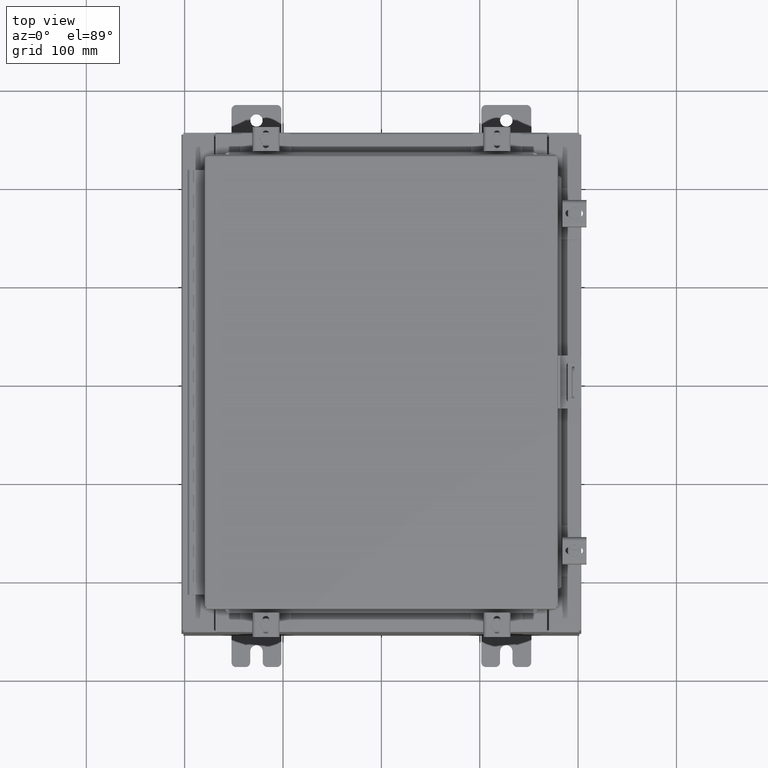
[diagram: clean part render]
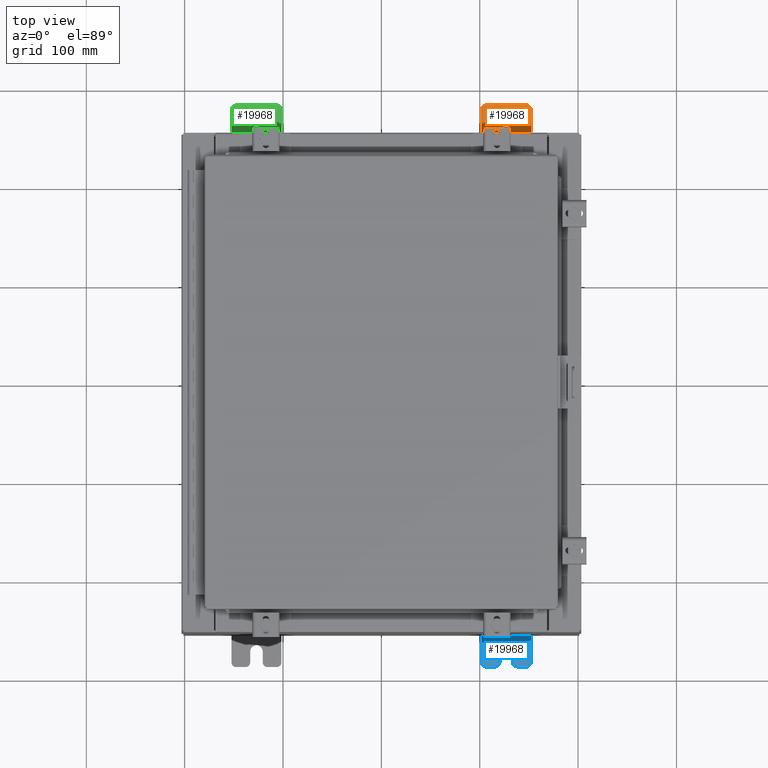
[diagram: same view with three faces highlighted in distinct colors, each labeled with its STEP entity id]
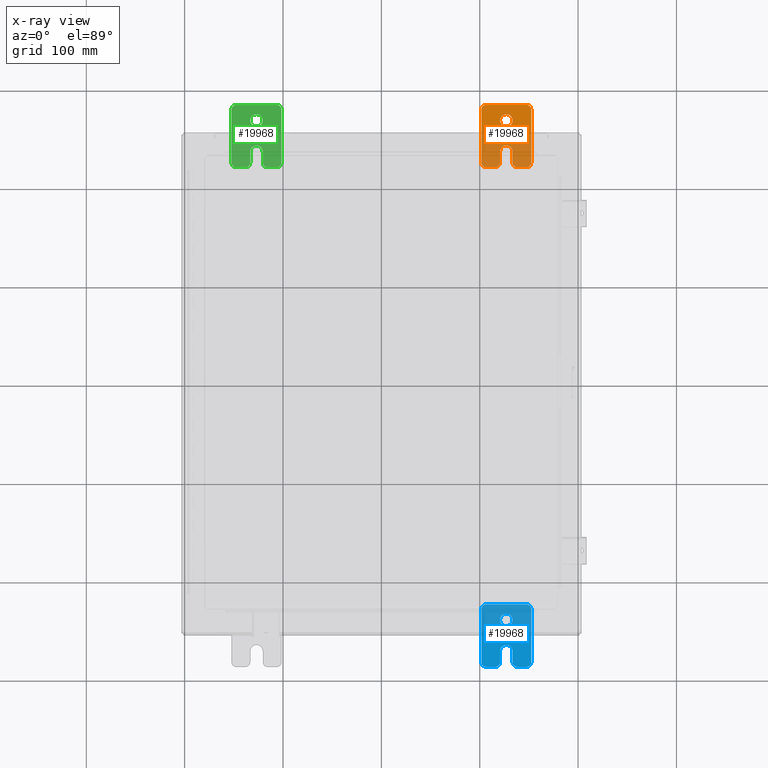
[diagram: x-ray of the same camera — body ghosted, the three highlighted faces saturated]
A machine part, top view with three faces highlighted in distinct colors.
The next image is the same camera in x-ray (body ghosted, the three faces saturated) — at least one of them is partly hidden behind the body in this view.
Their STEP definitions:

[orange] entity #19968 — the highlighted planar face has unit normal (0, 0, 1).
#142 = EDGE_CURVE ( 'NONE', #1537, #10038, #14844, .T. ) ;
#655 = EDGE_CURVE ( 'NONE', #10101, #25699, #19424, .T. ) ;
#717 = CARTESIAN_POINT ( 'NONE',  ( 0.0000000000000000000, -1.250000000000005600, -1.000000000000006200 ) ) ;
#722 = CIRCLE ( 'NONE', #10263, 0.1900000000000011100 ) ;
#729 = ORIENTED_EDGE ( 'NONE', *, *, #904, .T. ) ;
#883 = CARTESIAN_POINT ( 'NONE',  ( 0.0000000000000000000, 1.059999999999993600, -0.8100000000000089400 ) ) ;
#904 = EDGE_CURVE ( 'NONE', #9407, #25755, #18354, .T. ) ;
#967 = CIRCLE ( 'NONE', #15060, 0.2499999999999999200 ) ;
#1161 = EDGE_CURVE ( 'NONE', #29018, #1537, #11910, .T. ) ;
#1355 = FACE_OUTER_BOUND ( 'NONE', #20609, .T. ) ;
#1449 = DIRECTION ( 'NONE',  ( 1.000000000000000000, 0.0000000000000000000, -0.0000000000000000000 ) ) ;
#1537 = VERTEX_POINT ( 'NONE', #23176 ) ;
#2424 = DIRECTION ( 'NONE',  ( 0.0000000000000000000, 0.0000000000000000000, -1.000000000000000000 ) ) ;
#2435 = CARTESIAN_POINT ( 'NONE',  ( 0.0000000000000000000, -0.6249999999999992200, 0.2500000000000005000 ) ) ;
#3077 = DIRECTION ( 'NONE',  ( 6.556435184794182400E-016, 1.000000000000000000, 0.0000000000000000000 ) ) ;
#3163 = DIRECTION ( 'NONE',  ( 0.0000000000000000000, 0.0000000000000000000, -1.000000000000000000 ) ) ;
#3229 = EDGE_CURVE ( 'NONE', #12703, #14231, #27163, .T. ) ;
#3608 = VECTOR ( 'NONE', #3944, 39.37007874015748100 ) ;
#3788 = CARTESIAN_POINT ( 'NONE',  ( 0.0000000000000000000, -1.060000000000003400, -0.4400000000000005000 ) ) ;
#3944 = DIRECTION ( 'NONE',  ( 0.0000000000000000000, -1.639108796198553600E-015, -1.000000000000000000 ) ) ;
#4014 = CARTESIAN_POINT ( 'NONE',  ( 0.0000000000000000000, 1.249999999999994200, -1.000000000000010400 ) ) ;
#4406 = CIRCLE ( 'NONE', #20731, 0.1900000000000011100 ) ;
#4657 = EDGE_CURVE ( 'NONE', #10038, #12703, #4951, .T. ) ;
#4951 = CIRCLE ( 'NONE', #19714, 0.1900000000000011100 ) ;
#5007 = VECTOR ( 'NONE', #6291, 39.37007874015748100 ) ;
#5450 = ORIENTED_EDGE ( 'NONE', *, *, #29311, .T. ) ;
#5769 = CARTESIAN_POINT ( 'NONE',  ( 0.0000000000000000000, -1.250000000000005300, -0.8100000000000047200 ) ) ;
#6017 = EDGE_CURVE ( 'NONE', #14231, #23090, #10894, .T. ) ;
#6081 = DIRECTION ( 'NONE',  ( 0.0000000000000000000, 0.0000000000000000000, -1.000000000000000000 ) ) ;
#6291 = DIRECTION ( 'NONE',  ( 0.0000000000000000000, 1.639108796198553600E-015, 1.000000000000000000 ) ) ;
#6402 = ORIENTED_EDGE ( 'NONE', *, *, #7234, .T. ) ;
#6435 = LINE ( 'NONE', #4014, #5007 ) ;
#6568 = DIRECTION ( 'NONE',  ( 1.000000000000000000, 0.0000000000000000000, -0.0000000000000000000 ) ) ;
#6571 = CARTESIAN_POINT ( 'NONE',  ( 1.928684683526964400E-016, -1.060000000000003400, -0.2499999999999994400 ) ) ;
#6841 = EDGE_CURVE ( 'NONE', #27717, #18850, #19051, .T. ) ;
#6917 = CARTESIAN_POINT ( 'NONE',  ( 0.0000000000000000000, -1.250000000000002200, 0.9999999999999992200 ) ) ;
#7234 = EDGE_CURVE ( 'NONE', #18850, #9407, #4406, .T. ) ;
#7286 = VERTEX_POINT ( 'NONE', #15782 ) ;
#7316 = VECTOR ( 'NONE', #8815, 39.37007874015748100 ) ;
#7453 = CARTESIAN_POINT ( 'NONE',  ( 0.0000000000000000000, 1.059999999999996300, 0.8099999999999938400 ) ) ;
#7580 = VERTEX_POINT ( 'NONE', #9593 ) ;
#7649 = VECTOR ( 'NONE', #11405, 39.37007874015748100 ) ;
#7650 = DIRECTION ( 'NONE',  ( 1.000000000000000000, 0.0000000000000000000, -0.0000000000000000000 ) ) ;
#8132 = DIRECTION ( 'NONE',  ( 0.0000000000000000000, -1.000000000000000000, 1.639108796198558100E-015 ) ) ;
#8217 = CARTESIAN_POINT ( 'NONE',  ( 0.0000000000000000000, 0.0000000000000000000, 0.0000000000000000000 ) ) ;
#8318 = DIRECTION ( 'NONE',  ( 1.000000000000000000, 0.0000000000000000000, -0.0000000000000000000 ) ) ;
#8368 = ORIENTED_EDGE ( 'NONE', *, *, #25156, .T. ) ;
#8460 = ORIENTED_EDGE ( 'NONE', *, *, #15496, .T. ) ;
#8544 = VECTOR ( 'NONE', #3077, 39.37007874015748100 ) ;
#8557 = AXIS2_PLACEMENT_3D ( 'NONE', #8217, #8318, #24264 ) ;
#8580 = CIRCLE ( 'NONE', #21309, 0.2499999999999999200 ) ;
#8603 = DIRECTION ( 'NONE',  ( -1.000000000000000000, 6.523827964459549700E-016, 5.163192708025532000E-017 ) ) ;
#8815 = DIRECTION ( 'NONE',  ( -6.556435184794182400E-016, -1.000000000000000000, -1.639108796198545600E-016 ) ) ;
#8844 = CARTESIAN_POINT ( 'NONE',  ( 4.039428427013647300E-016, 0.6249999999999992200, -9.783840404509077400E-018 ) ) ;
#8938 = CARTESIAN_POINT ( 'NONE',  ( 0.0000000000000000000, -1.060000000000001200, 0.9999999999999988900 ) ) ;
#8977 = CARTESIAN_POINT ( 'NONE',  ( 0.0000000000000000000, 1.249999999999994700, -0.8100000000000092700 ) ) ;
#9100 = ORIENTED_EDGE ( 'NONE', *, *, #3229, .T. ) ;
#9407 = VERTEX_POINT ( 'NONE', #13438 ) ;
#9593 = CARTESIAN_POINT ( 'NONE',  ( 3.910348609313009100E-016, 0.6249999999999992200, -0.2499999999999999200 ) ) ;
#9720 = CARTESIAN_POINT ( 'NONE',  ( 0.0000000000000000000, -1.250000000000002400, 0.8099999999999980500 ) ) ;
#10038 = VERTEX_POINT ( 'NONE', #8938 ) ;
#10101 = VERTEX_POINT ( 'NONE', #25096 ) ;
#10263 = AXIS2_PLACEMENT_3D ( 'NONE', #883, #16799, #3163 ) ;
#10309 = EDGE_CURVE ( 'NONE', #25755, #25728, #722, .T. ) ;
#10541 = DIRECTION ( 'NONE',  ( 0.0000000000000000000, 1.000000000000000000, -1.639108796198558100E-015 ) ) ;
#10894 = CIRCLE ( 'NONE', #21462, 0.1900000000000011400 ) ;
#11128 = DIRECTION ( 'NONE',  ( -5.163192708025533800E-017, 0.0000000000000000000, -1.000000000000000000 ) ) ;
#11267 = CIRCLE ( 'NONE', #28270, 0.2499999999999999200 ) ;
#11405 = DIRECTION ( 'NONE',  ( 0.0000000000000000000, -1.639108796198553600E-015, -1.000000000000000000 ) ) ;
#11899 = EDGE_CURVE ( 'NONE', #7580, #7286, #11267, .T. ) ;
#11910 = CIRCLE ( 'NONE', #16425, 0.1900000000000011100 ) ;
#12081 = CARTESIAN_POINT ( 'NONE',  ( 0.0000000000000000000, -1.060000000000001600, 0.8099999999999978300 ) ) ;
#12213 = CARTESIAN_POINT ( 'NONE',  ( 4.039428427013647300E-016, 0.6249999999999992200, -9.783840404509077400E-018 ) ) ;
#12703 = VERTEX_POINT ( 'NONE', #9720 ) ;
#12723 = ORIENTED_EDGE ( 'NONE', *, *, #6841, .T. ) ;
#13227 = VERTEX_POINT ( 'NONE', #2435 ) ;
#13438 = CARTESIAN_POINT ( 'NONE',  ( 0.0000000000000000000, -1.060000000000004500, -1.000000000000006400 ) ) ;
#14231 = VERTEX_POINT ( 'NONE', #26882 ) ;
#14311 = CARTESIAN_POINT ( 'NONE',  ( 0.0000000000000000000, 1.249999999999997300, 0.8099999999999935000 ) ) ;
#14406 = DIRECTION ( 'NONE',  ( 0.0000000000000000000, 0.0000000000000000000, -1.000000000000000000 ) ) ;
#14526 = DIRECTION ( 'NONE',  ( -5.163192708025533800E-017, 0.0000000000000000000, -1.000000000000000000 ) ) ;
#14844 = LINE ( 'NONE', #23008, #26268 ) ;
#15060 = AXIS2_PLACEMENT_3D ( 'NONE', #12213, #28191, #14526 ) ;
#15088 = CARTESIAN_POINT ( 'NONE',  ( 0.0000000000000000000, -1.060000000000004100, -0.8100000000000050500 ) ) ;
#15496 = EDGE_CURVE ( 'NONE', #23090, #13227, #20651, .T. ) ;
#15692 = EDGE_LOOP ( 'NONE', ( #28831, #15819 ) ) ;
#15782 = CARTESIAN_POINT ( 'NONE',  ( 4.168508244714285900E-016, 0.6249999999999992200, 0.2499999999999999200 ) ) ;
#15819 = ORIENTED_EDGE ( 'NONE', *, *, #20726, .F. ) ;
#16425 = AXIS2_PLACEMENT_3D ( 'NONE', #7453, #7650, #2424 ) ;
#16799 = DIRECTION ( 'NONE',  ( 1.000000000000000000, 0.0000000000000000000, -0.0000000000000000000 ) ) ;
#17373 = DIRECTION ( 'NONE',  ( 0.0000000000000000000, 0.0000000000000000000, -1.000000000000000000 ) ) ;
#18229 = CARTESIAN_POINT ( 'NONE',  ( 0.0000000000000000000, 1.059999999999993400, -1.000000000000010000 ) ) ;
#18354 = LINE ( 'NONE', #717, #19065 ) ;
#18850 = VERTEX_POINT ( 'NONE', #5769 ) ;
#18870 = CIRCLE ( 'NONE', #24615, 0.1900000000000011100 ) ;
#19051 = LINE ( 'NONE', #6917, #7649 ) ;
#19065 = VECTOR ( 'NONE', #10541, 39.37007874015748100 ) ;
#19175 = ORIENTED_EDGE ( 'NONE', *, *, #10309, .T. ) ;
#19424 = LINE ( 'NONE', #22456, #7316 ) ;
#19714 = AXIS2_PLACEMENT_3D ( 'NONE', #12081, #28071, #14406 ) ;
#19725 = DIRECTION ( 'NONE',  ( 1.000000000000000000, 0.0000000000000000000, -0.0000000000000000000 ) ) ;
#19861 = CARTESIAN_POINT ( 'NONE',  ( 0.0000000000000000000, -1.250000000000002200, 0.9999999999999992200 ) ) ;
#19968 = ADVANCED_FACE ( 'NONE', ( #24879, #1355 ), #21940, .T. ) ;
#20211 = CARTESIAN_POINT ( 'NONE',  ( 0.0000000000000000000, -1.060000000000002100, 0.4400000000000016700 ) ) ;
#20609 = EDGE_LOOP ( 'NONE', ( #20869, #28274, #9100, #20629, #8460, #8368, #20897, #24457, #12723, #6402, #729, #19175, #5450, #21919 ) ) ;
#20629 = ORIENTED_EDGE ( 'NONE', *, *, #6017, .T. ) ;
#20651 = LINE ( 'NONE', #21174, #8544 ) ;
#20726 = EDGE_CURVE ( 'NONE', #7286, #7580, #967, .T. ) ;
#20731 = AXIS2_PLACEMENT_3D ( 'NONE', #15088, #1449, #17373 ) ;
#20869 = ORIENTED_EDGE ( 'NONE', *, *, #142, .T. ) ;
#20897 = ORIENTED_EDGE ( 'NONE', *, *, #655, .T. ) ;
#21174 = CARTESIAN_POINT ( 'NONE',  ( 6.829619984160658000E-017, -1.250000000000003800, 0.2500000000000005000 ) ) ;
#21309 = AXIS2_PLACEMENT_3D ( 'NONE', #22231, #8603, #24550 ) ;
#21462 = AXIS2_PLACEMENT_3D ( 'NONE', #20211, #6568, #22518 ) ;
#21919 = ORIENTED_EDGE ( 'NONE', *, *, #1161, .T. ) ;
#21940 = PLANE ( 'NONE',  #8557 ) ;
#22231 = CARTESIAN_POINT ( 'NONE',  ( 4.780733988912460100E-016, -0.6249999999999993300, 5.858939755051854500E-017 ) ) ;
#22456 = CARTESIAN_POINT ( 'NONE',  ( 4.780733988912460100E-016, -0.6249999999999993300, -0.2499999999999993900 ) ) ;
#22518 = DIRECTION ( 'NONE',  ( 0.0000000000000000000, 0.0000000000000000000, -1.000000000000000000 ) ) ;
#23008 = CARTESIAN_POINT ( 'NONE',  ( 0.0000000000000000000, 1.249999999999997600, 0.9999999999999951200 ) ) ;
#23090 = VERTEX_POINT ( 'NONE', #24841 ) ;
#23176 = CARTESIAN_POINT ( 'NONE',  ( 0.0000000000000000000, 1.059999999999996500, 0.9999999999999953400 ) ) ;
#24264 = DIRECTION ( 'NONE',  ( -0.0000000000000000000, 0.0000000000000000000, -1.000000000000000000 ) ) ;
#24457 = ORIENTED_EDGE ( 'NONE', *, *, #26039, .T. ) ;
#24550 = DIRECTION ( 'NONE',  ( -6.523827964459551700E-016, -1.000000000000000000, 0.0000000000000000000 ) ) ;
#24615 = AXIS2_PLACEMENT_3D ( 'NONE', #3788, #19725, #6081 ) ;
#24802 = DIRECTION ( 'NONE',  ( 1.000000000000000000, -0.0000000000000000000, -5.163192708025532000E-017 ) ) ;
#24841 = CARTESIAN_POINT ( 'NONE',  ( 1.928684683526972300E-016, -1.060000000000002100, 0.2500000000000005000 ) ) ;
#24879 = FACE_BOUND ( 'NONE', #15692, .T. ) ;
#25096 = CARTESIAN_POINT ( 'NONE',  ( 4.780733988912460100E-016, -0.6249999999999993300, -0.2499999999999998600 ) ) ;
#25156 = EDGE_CURVE ( 'NONE', #13227, #10101, #8580, .T. ) ;
#25699 = VERTEX_POINT ( 'NONE', #6571 ) ;
#25728 = VERTEX_POINT ( 'NONE', #8977 ) ;
#25755 = VERTEX_POINT ( 'NONE', #18229 ) ;
#26039 = EDGE_CURVE ( 'NONE', #25699, #27717, #18870, .T. ) ;
#26268 = VECTOR ( 'NONE', #8132, 39.37007874015748100 ) ;
#26882 = CARTESIAN_POINT ( 'NONE',  ( 0.0000000000000000000, -1.250000000000003100, 0.4400000000000020000 ) ) ;
#27163 = LINE ( 'NONE', #19861, #3608 ) ;
#27717 = VERTEX_POINT ( 'NONE', #28707 ) ;
#28071 = DIRECTION ( 'NONE',  ( 1.000000000000000000, 0.0000000000000000000, -0.0000000000000000000 ) ) ;
#28191 = DIRECTION ( 'NONE',  ( 1.000000000000000000, -0.0000000000000000000, -5.163192708025532000E-017 ) ) ;
#28270 = AXIS2_PLACEMENT_3D ( 'NONE', #8844, #24802, #11128 ) ;
#28274 = ORIENTED_EDGE ( 'NONE', *, *, #4657, .T. ) ;
#28707 = CARTESIAN_POINT ( 'NONE',  ( 0.0000000000000000000, -1.250000000000004700, -0.4400000000000002200 ) ) ;
#28831 = ORIENTED_EDGE ( 'NONE', *, *, #11899, .F. ) ;
#29018 = VERTEX_POINT ( 'NONE', #14311 ) ;
#29311 = EDGE_CURVE ( 'NONE', #25728, #29018, #6435, .T. ) ;

[blue] entity #19968 — the highlighted planar face has unit normal (0, 0, 1).
#142 = EDGE_CURVE ( 'NONE', #1537, #10038, #14844, .T. ) ;
#655 = EDGE_CURVE ( 'NONE', #10101, #25699, #19424, .T. ) ;
#717 = CARTESIAN_POINT ( 'NONE',  ( 0.0000000000000000000, -1.250000000000005600, -1.000000000000006200 ) ) ;
#722 = CIRCLE ( 'NONE', #10263, 0.1900000000000011100 ) ;
#729 = ORIENTED_EDGE ( 'NONE', *, *, #904, .T. ) ;
#883 = CARTESIAN_POINT ( 'NONE',  ( 0.0000000000000000000, 1.059999999999993600, -0.8100000000000089400 ) ) ;
#904 = EDGE_CURVE ( 'NONE', #9407, #25755, #18354, .T. ) ;
#967 = CIRCLE ( 'NONE', #15060, 0.2499999999999999200 ) ;
#1161 = EDGE_CURVE ( 'NONE', #29018, #1537, #11910, .T. ) ;
#1355 = FACE_OUTER_BOUND ( 'NONE', #20609, .T. ) ;
#1449 = DIRECTION ( 'NONE',  ( 1.000000000000000000, 0.0000000000000000000, -0.0000000000000000000 ) ) ;
#1537 = VERTEX_POINT ( 'NONE', #23176 ) ;
#2424 = DIRECTION ( 'NONE',  ( 0.0000000000000000000, 0.0000000000000000000, -1.000000000000000000 ) ) ;
#2435 = CARTESIAN_POINT ( 'NONE',  ( 0.0000000000000000000, -0.6249999999999992200, 0.2500000000000005000 ) ) ;
#3077 = DIRECTION ( 'NONE',  ( 6.556435184794182400E-016, 1.000000000000000000, 0.0000000000000000000 ) ) ;
#3163 = DIRECTION ( 'NONE',  ( 0.0000000000000000000, 0.0000000000000000000, -1.000000000000000000 ) ) ;
#3229 = EDGE_CURVE ( 'NONE', #12703, #14231, #27163, .T. ) ;
#3608 = VECTOR ( 'NONE', #3944, 39.37007874015748100 ) ;
#3788 = CARTESIAN_POINT ( 'NONE',  ( 0.0000000000000000000, -1.060000000000003400, -0.4400000000000005000 ) ) ;
#3944 = DIRECTION ( 'NONE',  ( 0.0000000000000000000, -1.639108796198553600E-015, -1.000000000000000000 ) ) ;
#4014 = CARTESIAN_POINT ( 'NONE',  ( 0.0000000000000000000, 1.249999999999994200, -1.000000000000010400 ) ) ;
#4406 = CIRCLE ( 'NONE', #20731, 0.1900000000000011100 ) ;
#4657 = EDGE_CURVE ( 'NONE', #10038, #12703, #4951, .T. ) ;
#4951 = CIRCLE ( 'NONE', #19714, 0.1900000000000011100 ) ;
#5007 = VECTOR ( 'NONE', #6291, 39.37007874015748100 ) ;
#5450 = ORIENTED_EDGE ( 'NONE', *, *, #29311, .T. ) ;
#5769 = CARTESIAN_POINT ( 'NONE',  ( 0.0000000000000000000, -1.250000000000005300, -0.8100000000000047200 ) ) ;
#6017 = EDGE_CURVE ( 'NONE', #14231, #23090, #10894, .T. ) ;
#6081 = DIRECTION ( 'NONE',  ( 0.0000000000000000000, 0.0000000000000000000, -1.000000000000000000 ) ) ;
#6291 = DIRECTION ( 'NONE',  ( 0.0000000000000000000, 1.639108796198553600E-015, 1.000000000000000000 ) ) ;
#6402 = ORIENTED_EDGE ( 'NONE', *, *, #7234, .T. ) ;
#6435 = LINE ( 'NONE', #4014, #5007 ) ;
#6568 = DIRECTION ( 'NONE',  ( 1.000000000000000000, 0.0000000000000000000, -0.0000000000000000000 ) ) ;
#6571 = CARTESIAN_POINT ( 'NONE',  ( 1.928684683526964400E-016, -1.060000000000003400, -0.2499999999999994400 ) ) ;
#6841 = EDGE_CURVE ( 'NONE', #27717, #18850, #19051, .T. ) ;
#6917 = CARTESIAN_POINT ( 'NONE',  ( 0.0000000000000000000, -1.250000000000002200, 0.9999999999999992200 ) ) ;
#7234 = EDGE_CURVE ( 'NONE', #18850, #9407, #4406, .T. ) ;
#7286 = VERTEX_POINT ( 'NONE', #15782 ) ;
#7316 = VECTOR ( 'NONE', #8815, 39.37007874015748100 ) ;
#7453 = CARTESIAN_POINT ( 'NONE',  ( 0.0000000000000000000, 1.059999999999996300, 0.8099999999999938400 ) ) ;
#7580 = VERTEX_POINT ( 'NONE', #9593 ) ;
#7649 = VECTOR ( 'NONE', #11405, 39.37007874015748100 ) ;
#7650 = DIRECTION ( 'NONE',  ( 1.000000000000000000, 0.0000000000000000000, -0.0000000000000000000 ) ) ;
#8132 = DIRECTION ( 'NONE',  ( 0.0000000000000000000, -1.000000000000000000, 1.639108796198558100E-015 ) ) ;
#8217 = CARTESIAN_POINT ( 'NONE',  ( 0.0000000000000000000, 0.0000000000000000000, 0.0000000000000000000 ) ) ;
#8318 = DIRECTION ( 'NONE',  ( 1.000000000000000000, 0.0000000000000000000, -0.0000000000000000000 ) ) ;
#8368 = ORIENTED_EDGE ( 'NONE', *, *, #25156, .T. ) ;
#8460 = ORIENTED_EDGE ( 'NONE', *, *, #15496, .T. ) ;
#8544 = VECTOR ( 'NONE', #3077, 39.37007874015748100 ) ;
#8557 = AXIS2_PLACEMENT_3D ( 'NONE', #8217, #8318, #24264 ) ;
#8580 = CIRCLE ( 'NONE', #21309, 0.2499999999999999200 ) ;
#8603 = DIRECTION ( 'NONE',  ( -1.000000000000000000, 6.523827964459549700E-016, 5.163192708025532000E-017 ) ) ;
#8815 = DIRECTION ( 'NONE',  ( -6.556435184794182400E-016, -1.000000000000000000, -1.639108796198545600E-016 ) ) ;
#8844 = CARTESIAN_POINT ( 'NONE',  ( 4.039428427013647300E-016, 0.6249999999999992200, -9.783840404509077400E-018 ) ) ;
#8938 = CARTESIAN_POINT ( 'NONE',  ( 0.0000000000000000000, -1.060000000000001200, 0.9999999999999988900 ) ) ;
#8977 = CARTESIAN_POINT ( 'NONE',  ( 0.0000000000000000000, 1.249999999999994700, -0.8100000000000092700 ) ) ;
#9100 = ORIENTED_EDGE ( 'NONE', *, *, #3229, .T. ) ;
#9407 = VERTEX_POINT ( 'NONE', #13438 ) ;
#9593 = CARTESIAN_POINT ( 'NONE',  ( 3.910348609313009100E-016, 0.6249999999999992200, -0.2499999999999999200 ) ) ;
#9720 = CARTESIAN_POINT ( 'NONE',  ( 0.0000000000000000000, -1.250000000000002400, 0.8099999999999980500 ) ) ;
#10038 = VERTEX_POINT ( 'NONE', #8938 ) ;
#10101 = VERTEX_POINT ( 'NONE', #25096 ) ;
#10263 = AXIS2_PLACEMENT_3D ( 'NONE', #883, #16799, #3163 ) ;
#10309 = EDGE_CURVE ( 'NONE', #25755, #25728, #722, .T. ) ;
#10541 = DIRECTION ( 'NONE',  ( 0.0000000000000000000, 1.000000000000000000, -1.639108796198558100E-015 ) ) ;
#10894 = CIRCLE ( 'NONE', #21462, 0.1900000000000011400 ) ;
#11128 = DIRECTION ( 'NONE',  ( -5.163192708025533800E-017, 0.0000000000000000000, -1.000000000000000000 ) ) ;
#11267 = CIRCLE ( 'NONE', #28270, 0.2499999999999999200 ) ;
#11405 = DIRECTION ( 'NONE',  ( 0.0000000000000000000, -1.639108796198553600E-015, -1.000000000000000000 ) ) ;
#11899 = EDGE_CURVE ( 'NONE', #7580, #7286, #11267, .T. ) ;
#11910 = CIRCLE ( 'NONE', #16425, 0.1900000000000011100 ) ;
#12081 = CARTESIAN_POINT ( 'NONE',  ( 0.0000000000000000000, -1.060000000000001600, 0.8099999999999978300 ) ) ;
#12213 = CARTESIAN_POINT ( 'NONE',  ( 4.039428427013647300E-016, 0.6249999999999992200, -9.783840404509077400E-018 ) ) ;
#12703 = VERTEX_POINT ( 'NONE', #9720 ) ;
#12723 = ORIENTED_EDGE ( 'NONE', *, *, #6841, .T. ) ;
#13227 = VERTEX_POINT ( 'NONE', #2435 ) ;
#13438 = CARTESIAN_POINT ( 'NONE',  ( 0.0000000000000000000, -1.060000000000004500, -1.000000000000006400 ) ) ;
#14231 = VERTEX_POINT ( 'NONE', #26882 ) ;
#14311 = CARTESIAN_POINT ( 'NONE',  ( 0.0000000000000000000, 1.249999999999997300, 0.8099999999999935000 ) ) ;
#14406 = DIRECTION ( 'NONE',  ( 0.0000000000000000000, 0.0000000000000000000, -1.000000000000000000 ) ) ;
#14526 = DIRECTION ( 'NONE',  ( -5.163192708025533800E-017, 0.0000000000000000000, -1.000000000000000000 ) ) ;
#14844 = LINE ( 'NONE', #23008, #26268 ) ;
#15060 = AXIS2_PLACEMENT_3D ( 'NONE', #12213, #28191, #14526 ) ;
#15088 = CARTESIAN_POINT ( 'NONE',  ( 0.0000000000000000000, -1.060000000000004100, -0.8100000000000050500 ) ) ;
#15496 = EDGE_CURVE ( 'NONE', #23090, #13227, #20651, .T. ) ;
#15692 = EDGE_LOOP ( 'NONE', ( #28831, #15819 ) ) ;
#15782 = CARTESIAN_POINT ( 'NONE',  ( 4.168508244714285900E-016, 0.6249999999999992200, 0.2499999999999999200 ) ) ;
#15819 = ORIENTED_EDGE ( 'NONE', *, *, #20726, .F. ) ;
#16425 = AXIS2_PLACEMENT_3D ( 'NONE', #7453, #7650, #2424 ) ;
#16799 = DIRECTION ( 'NONE',  ( 1.000000000000000000, 0.0000000000000000000, -0.0000000000000000000 ) ) ;
#17373 = DIRECTION ( 'NONE',  ( 0.0000000000000000000, 0.0000000000000000000, -1.000000000000000000 ) ) ;
#18229 = CARTESIAN_POINT ( 'NONE',  ( 0.0000000000000000000, 1.059999999999993400, -1.000000000000010000 ) ) ;
#18354 = LINE ( 'NONE', #717, #19065 ) ;
#18850 = VERTEX_POINT ( 'NONE', #5769 ) ;
#18870 = CIRCLE ( 'NONE', #24615, 0.1900000000000011100 ) ;
#19051 = LINE ( 'NONE', #6917, #7649 ) ;
#19065 = VECTOR ( 'NONE', #10541, 39.37007874015748100 ) ;
#19175 = ORIENTED_EDGE ( 'NONE', *, *, #10309, .T. ) ;
#19424 = LINE ( 'NONE', #22456, #7316 ) ;
#19714 = AXIS2_PLACEMENT_3D ( 'NONE', #12081, #28071, #14406 ) ;
#19725 = DIRECTION ( 'NONE',  ( 1.000000000000000000, 0.0000000000000000000, -0.0000000000000000000 ) ) ;
#19861 = CARTESIAN_POINT ( 'NONE',  ( 0.0000000000000000000, -1.250000000000002200, 0.9999999999999992200 ) ) ;
#19968 = ADVANCED_FACE ( 'NONE', ( #24879, #1355 ), #21940, .T. ) ;
#20211 = CARTESIAN_POINT ( 'NONE',  ( 0.0000000000000000000, -1.060000000000002100, 0.4400000000000016700 ) ) ;
#20609 = EDGE_LOOP ( 'NONE', ( #20869, #28274, #9100, #20629, #8460, #8368, #20897, #24457, #12723, #6402, #729, #19175, #5450, #21919 ) ) ;
#20629 = ORIENTED_EDGE ( 'NONE', *, *, #6017, .T. ) ;
#20651 = LINE ( 'NONE', #21174, #8544 ) ;
#20726 = EDGE_CURVE ( 'NONE', #7286, #7580, #967, .T. ) ;
#20731 = AXIS2_PLACEMENT_3D ( 'NONE', #15088, #1449, #17373 ) ;
#20869 = ORIENTED_EDGE ( 'NONE', *, *, #142, .T. ) ;
#20897 = ORIENTED_EDGE ( 'NONE', *, *, #655, .T. ) ;
#21174 = CARTESIAN_POINT ( 'NONE',  ( 6.829619984160658000E-017, -1.250000000000003800, 0.2500000000000005000 ) ) ;
#21309 = AXIS2_PLACEMENT_3D ( 'NONE', #22231, #8603, #24550 ) ;
#21462 = AXIS2_PLACEMENT_3D ( 'NONE', #20211, #6568, #22518 ) ;
#21919 = ORIENTED_EDGE ( 'NONE', *, *, #1161, .T. ) ;
#21940 = PLANE ( 'NONE',  #8557 ) ;
#22231 = CARTESIAN_POINT ( 'NONE',  ( 4.780733988912460100E-016, -0.6249999999999993300, 5.858939755051854500E-017 ) ) ;
#22456 = CARTESIAN_POINT ( 'NONE',  ( 4.780733988912460100E-016, -0.6249999999999993300, -0.2499999999999993900 ) ) ;
#22518 = DIRECTION ( 'NONE',  ( 0.0000000000000000000, 0.0000000000000000000, -1.000000000000000000 ) ) ;
#23008 = CARTESIAN_POINT ( 'NONE',  ( 0.0000000000000000000, 1.249999999999997600, 0.9999999999999951200 ) ) ;
#23090 = VERTEX_POINT ( 'NONE', #24841 ) ;
#23176 = CARTESIAN_POINT ( 'NONE',  ( 0.0000000000000000000, 1.059999999999996500, 0.9999999999999953400 ) ) ;
#24264 = DIRECTION ( 'NONE',  ( -0.0000000000000000000, 0.0000000000000000000, -1.000000000000000000 ) ) ;
#24457 = ORIENTED_EDGE ( 'NONE', *, *, #26039, .T. ) ;
#24550 = DIRECTION ( 'NONE',  ( -6.523827964459551700E-016, -1.000000000000000000, 0.0000000000000000000 ) ) ;
#24615 = AXIS2_PLACEMENT_3D ( 'NONE', #3788, #19725, #6081 ) ;
#24802 = DIRECTION ( 'NONE',  ( 1.000000000000000000, -0.0000000000000000000, -5.163192708025532000E-017 ) ) ;
#24841 = CARTESIAN_POINT ( 'NONE',  ( 1.928684683526972300E-016, -1.060000000000002100, 0.2500000000000005000 ) ) ;
#24879 = FACE_BOUND ( 'NONE', #15692, .T. ) ;
#25096 = CARTESIAN_POINT ( 'NONE',  ( 4.780733988912460100E-016, -0.6249999999999993300, -0.2499999999999998600 ) ) ;
#25156 = EDGE_CURVE ( 'NONE', #13227, #10101, #8580, .T. ) ;
#25699 = VERTEX_POINT ( 'NONE', #6571 ) ;
#25728 = VERTEX_POINT ( 'NONE', #8977 ) ;
#25755 = VERTEX_POINT ( 'NONE', #18229 ) ;
#26039 = EDGE_CURVE ( 'NONE', #25699, #27717, #18870, .T. ) ;
#26268 = VECTOR ( 'NONE', #8132, 39.37007874015748100 ) ;
#26882 = CARTESIAN_POINT ( 'NONE',  ( 0.0000000000000000000, -1.250000000000003100, 0.4400000000000020000 ) ) ;
#27163 = LINE ( 'NONE', #19861, #3608 ) ;
#27717 = VERTEX_POINT ( 'NONE', #28707 ) ;
#28071 = DIRECTION ( 'NONE',  ( 1.000000000000000000, 0.0000000000000000000, -0.0000000000000000000 ) ) ;
#28191 = DIRECTION ( 'NONE',  ( 1.000000000000000000, -0.0000000000000000000, -5.163192708025532000E-017 ) ) ;
#28270 = AXIS2_PLACEMENT_3D ( 'NONE', #8844, #24802, #11128 ) ;
#28274 = ORIENTED_EDGE ( 'NONE', *, *, #4657, .T. ) ;
#28707 = CARTESIAN_POINT ( 'NONE',  ( 0.0000000000000000000, -1.250000000000004700, -0.4400000000000002200 ) ) ;
#28831 = ORIENTED_EDGE ( 'NONE', *, *, #11899, .F. ) ;
#29018 = VERTEX_POINT ( 'NONE', #14311 ) ;
#29311 = EDGE_CURVE ( 'NONE', #25728, #29018, #6435, .T. ) ;

[green] entity #19968 — the highlighted planar face has unit normal (0, 0, 1).
#142 = EDGE_CURVE ( 'NONE', #1537, #10038, #14844, .T. ) ;
#655 = EDGE_CURVE ( 'NONE', #10101, #25699, #19424, .T. ) ;
#717 = CARTESIAN_POINT ( 'NONE',  ( 0.0000000000000000000, -1.250000000000005600, -1.000000000000006200 ) ) ;
#722 = CIRCLE ( 'NONE', #10263, 0.1900000000000011100 ) ;
#729 = ORIENTED_EDGE ( 'NONE', *, *, #904, .T. ) ;
#883 = CARTESIAN_POINT ( 'NONE',  ( 0.0000000000000000000, 1.059999999999993600, -0.8100000000000089400 ) ) ;
#904 = EDGE_CURVE ( 'NONE', #9407, #25755, #18354, .T. ) ;
#967 = CIRCLE ( 'NONE', #15060, 0.2499999999999999200 ) ;
#1161 = EDGE_CURVE ( 'NONE', #29018, #1537, #11910, .T. ) ;
#1355 = FACE_OUTER_BOUND ( 'NONE', #20609, .T. ) ;
#1449 = DIRECTION ( 'NONE',  ( 1.000000000000000000, 0.0000000000000000000, -0.0000000000000000000 ) ) ;
#1537 = VERTEX_POINT ( 'NONE', #23176 ) ;
#2424 = DIRECTION ( 'NONE',  ( 0.0000000000000000000, 0.0000000000000000000, -1.000000000000000000 ) ) ;
#2435 = CARTESIAN_POINT ( 'NONE',  ( 0.0000000000000000000, -0.6249999999999992200, 0.2500000000000005000 ) ) ;
#3077 = DIRECTION ( 'NONE',  ( 6.556435184794182400E-016, 1.000000000000000000, 0.0000000000000000000 ) ) ;
#3163 = DIRECTION ( 'NONE',  ( 0.0000000000000000000, 0.0000000000000000000, -1.000000000000000000 ) ) ;
#3229 = EDGE_CURVE ( 'NONE', #12703, #14231, #27163, .T. ) ;
#3608 = VECTOR ( 'NONE', #3944, 39.37007874015748100 ) ;
#3788 = CARTESIAN_POINT ( 'NONE',  ( 0.0000000000000000000, -1.060000000000003400, -0.4400000000000005000 ) ) ;
#3944 = DIRECTION ( 'NONE',  ( 0.0000000000000000000, -1.639108796198553600E-015, -1.000000000000000000 ) ) ;
#4014 = CARTESIAN_POINT ( 'NONE',  ( 0.0000000000000000000, 1.249999999999994200, -1.000000000000010400 ) ) ;
#4406 = CIRCLE ( 'NONE', #20731, 0.1900000000000011100 ) ;
#4657 = EDGE_CURVE ( 'NONE', #10038, #12703, #4951, .T. ) ;
#4951 = CIRCLE ( 'NONE', #19714, 0.1900000000000011100 ) ;
#5007 = VECTOR ( 'NONE', #6291, 39.37007874015748100 ) ;
#5450 = ORIENTED_EDGE ( 'NONE', *, *, #29311, .T. ) ;
#5769 = CARTESIAN_POINT ( 'NONE',  ( 0.0000000000000000000, -1.250000000000005300, -0.8100000000000047200 ) ) ;
#6017 = EDGE_CURVE ( 'NONE', #14231, #23090, #10894, .T. ) ;
#6081 = DIRECTION ( 'NONE',  ( 0.0000000000000000000, 0.0000000000000000000, -1.000000000000000000 ) ) ;
#6291 = DIRECTION ( 'NONE',  ( 0.0000000000000000000, 1.639108796198553600E-015, 1.000000000000000000 ) ) ;
#6402 = ORIENTED_EDGE ( 'NONE', *, *, #7234, .T. ) ;
#6435 = LINE ( 'NONE', #4014, #5007 ) ;
#6568 = DIRECTION ( 'NONE',  ( 1.000000000000000000, 0.0000000000000000000, -0.0000000000000000000 ) ) ;
#6571 = CARTESIAN_POINT ( 'NONE',  ( 1.928684683526964400E-016, -1.060000000000003400, -0.2499999999999994400 ) ) ;
#6841 = EDGE_CURVE ( 'NONE', #27717, #18850, #19051, .T. ) ;
#6917 = CARTESIAN_POINT ( 'NONE',  ( 0.0000000000000000000, -1.250000000000002200, 0.9999999999999992200 ) ) ;
#7234 = EDGE_CURVE ( 'NONE', #18850, #9407, #4406, .T. ) ;
#7286 = VERTEX_POINT ( 'NONE', #15782 ) ;
#7316 = VECTOR ( 'NONE', #8815, 39.37007874015748100 ) ;
#7453 = CARTESIAN_POINT ( 'NONE',  ( 0.0000000000000000000, 1.059999999999996300, 0.8099999999999938400 ) ) ;
#7580 = VERTEX_POINT ( 'NONE', #9593 ) ;
#7649 = VECTOR ( 'NONE', #11405, 39.37007874015748100 ) ;
#7650 = DIRECTION ( 'NONE',  ( 1.000000000000000000, 0.0000000000000000000, -0.0000000000000000000 ) ) ;
#8132 = DIRECTION ( 'NONE',  ( 0.0000000000000000000, -1.000000000000000000, 1.639108796198558100E-015 ) ) ;
#8217 = CARTESIAN_POINT ( 'NONE',  ( 0.0000000000000000000, 0.0000000000000000000, 0.0000000000000000000 ) ) ;
#8318 = DIRECTION ( 'NONE',  ( 1.000000000000000000, 0.0000000000000000000, -0.0000000000000000000 ) ) ;
#8368 = ORIENTED_EDGE ( 'NONE', *, *, #25156, .T. ) ;
#8460 = ORIENTED_EDGE ( 'NONE', *, *, #15496, .T. ) ;
#8544 = VECTOR ( 'NONE', #3077, 39.37007874015748100 ) ;
#8557 = AXIS2_PLACEMENT_3D ( 'NONE', #8217, #8318, #24264 ) ;
#8580 = CIRCLE ( 'NONE', #21309, 0.2499999999999999200 ) ;
#8603 = DIRECTION ( 'NONE',  ( -1.000000000000000000, 6.523827964459549700E-016, 5.163192708025532000E-017 ) ) ;
#8815 = DIRECTION ( 'NONE',  ( -6.556435184794182400E-016, -1.000000000000000000, -1.639108796198545600E-016 ) ) ;
#8844 = CARTESIAN_POINT ( 'NONE',  ( 4.039428427013647300E-016, 0.6249999999999992200, -9.783840404509077400E-018 ) ) ;
#8938 = CARTESIAN_POINT ( 'NONE',  ( 0.0000000000000000000, -1.060000000000001200, 0.9999999999999988900 ) ) ;
#8977 = CARTESIAN_POINT ( 'NONE',  ( 0.0000000000000000000, 1.249999999999994700, -0.8100000000000092700 ) ) ;
#9100 = ORIENTED_EDGE ( 'NONE', *, *, #3229, .T. ) ;
#9407 = VERTEX_POINT ( 'NONE', #13438 ) ;
#9593 = CARTESIAN_POINT ( 'NONE',  ( 3.910348609313009100E-016, 0.6249999999999992200, -0.2499999999999999200 ) ) ;
#9720 = CARTESIAN_POINT ( 'NONE',  ( 0.0000000000000000000, -1.250000000000002400, 0.8099999999999980500 ) ) ;
#10038 = VERTEX_POINT ( 'NONE', #8938 ) ;
#10101 = VERTEX_POINT ( 'NONE', #25096 ) ;
#10263 = AXIS2_PLACEMENT_3D ( 'NONE', #883, #16799, #3163 ) ;
#10309 = EDGE_CURVE ( 'NONE', #25755, #25728, #722, .T. ) ;
#10541 = DIRECTION ( 'NONE',  ( 0.0000000000000000000, 1.000000000000000000, -1.639108796198558100E-015 ) ) ;
#10894 = CIRCLE ( 'NONE', #21462, 0.1900000000000011400 ) ;
#11128 = DIRECTION ( 'NONE',  ( -5.163192708025533800E-017, 0.0000000000000000000, -1.000000000000000000 ) ) ;
#11267 = CIRCLE ( 'NONE', #28270, 0.2499999999999999200 ) ;
#11405 = DIRECTION ( 'NONE',  ( 0.0000000000000000000, -1.639108796198553600E-015, -1.000000000000000000 ) ) ;
#11899 = EDGE_CURVE ( 'NONE', #7580, #7286, #11267, .T. ) ;
#11910 = CIRCLE ( 'NONE', #16425, 0.1900000000000011100 ) ;
#12081 = CARTESIAN_POINT ( 'NONE',  ( 0.0000000000000000000, -1.060000000000001600, 0.8099999999999978300 ) ) ;
#12213 = CARTESIAN_POINT ( 'NONE',  ( 4.039428427013647300E-016, 0.6249999999999992200, -9.783840404509077400E-018 ) ) ;
#12703 = VERTEX_POINT ( 'NONE', #9720 ) ;
#12723 = ORIENTED_EDGE ( 'NONE', *, *, #6841, .T. ) ;
#13227 = VERTEX_POINT ( 'NONE', #2435 ) ;
#13438 = CARTESIAN_POINT ( 'NONE',  ( 0.0000000000000000000, -1.060000000000004500, -1.000000000000006400 ) ) ;
#14231 = VERTEX_POINT ( 'NONE', #26882 ) ;
#14311 = CARTESIAN_POINT ( 'NONE',  ( 0.0000000000000000000, 1.249999999999997300, 0.8099999999999935000 ) ) ;
#14406 = DIRECTION ( 'NONE',  ( 0.0000000000000000000, 0.0000000000000000000, -1.000000000000000000 ) ) ;
#14526 = DIRECTION ( 'NONE',  ( -5.163192708025533800E-017, 0.0000000000000000000, -1.000000000000000000 ) ) ;
#14844 = LINE ( 'NONE', #23008, #26268 ) ;
#15060 = AXIS2_PLACEMENT_3D ( 'NONE', #12213, #28191, #14526 ) ;
#15088 = CARTESIAN_POINT ( 'NONE',  ( 0.0000000000000000000, -1.060000000000004100, -0.8100000000000050500 ) ) ;
#15496 = EDGE_CURVE ( 'NONE', #23090, #13227, #20651, .T. ) ;
#15692 = EDGE_LOOP ( 'NONE', ( #28831, #15819 ) ) ;
#15782 = CARTESIAN_POINT ( 'NONE',  ( 4.168508244714285900E-016, 0.6249999999999992200, 0.2499999999999999200 ) ) ;
#15819 = ORIENTED_EDGE ( 'NONE', *, *, #20726, .F. ) ;
#16425 = AXIS2_PLACEMENT_3D ( 'NONE', #7453, #7650, #2424 ) ;
#16799 = DIRECTION ( 'NONE',  ( 1.000000000000000000, 0.0000000000000000000, -0.0000000000000000000 ) ) ;
#17373 = DIRECTION ( 'NONE',  ( 0.0000000000000000000, 0.0000000000000000000, -1.000000000000000000 ) ) ;
#18229 = CARTESIAN_POINT ( 'NONE',  ( 0.0000000000000000000, 1.059999999999993400, -1.000000000000010000 ) ) ;
#18354 = LINE ( 'NONE', #717, #19065 ) ;
#18850 = VERTEX_POINT ( 'NONE', #5769 ) ;
#18870 = CIRCLE ( 'NONE', #24615, 0.1900000000000011100 ) ;
#19051 = LINE ( 'NONE', #6917, #7649 ) ;
#19065 = VECTOR ( 'NONE', #10541, 39.37007874015748100 ) ;
#19175 = ORIENTED_EDGE ( 'NONE', *, *, #10309, .T. ) ;
#19424 = LINE ( 'NONE', #22456, #7316 ) ;
#19714 = AXIS2_PLACEMENT_3D ( 'NONE', #12081, #28071, #14406 ) ;
#19725 = DIRECTION ( 'NONE',  ( 1.000000000000000000, 0.0000000000000000000, -0.0000000000000000000 ) ) ;
#19861 = CARTESIAN_POINT ( 'NONE',  ( 0.0000000000000000000, -1.250000000000002200, 0.9999999999999992200 ) ) ;
#19968 = ADVANCED_FACE ( 'NONE', ( #24879, #1355 ), #21940, .T. ) ;
#20211 = CARTESIAN_POINT ( 'NONE',  ( 0.0000000000000000000, -1.060000000000002100, 0.4400000000000016700 ) ) ;
#20609 = EDGE_LOOP ( 'NONE', ( #20869, #28274, #9100, #20629, #8460, #8368, #20897, #24457, #12723, #6402, #729, #19175, #5450, #21919 ) ) ;
#20629 = ORIENTED_EDGE ( 'NONE', *, *, #6017, .T. ) ;
#20651 = LINE ( 'NONE', #21174, #8544 ) ;
#20726 = EDGE_CURVE ( 'NONE', #7286, #7580, #967, .T. ) ;
#20731 = AXIS2_PLACEMENT_3D ( 'NONE', #15088, #1449, #17373 ) ;
#20869 = ORIENTED_EDGE ( 'NONE', *, *, #142, .T. ) ;
#20897 = ORIENTED_EDGE ( 'NONE', *, *, #655, .T. ) ;
#21174 = CARTESIAN_POINT ( 'NONE',  ( 6.829619984160658000E-017, -1.250000000000003800, 0.2500000000000005000 ) ) ;
#21309 = AXIS2_PLACEMENT_3D ( 'NONE', #22231, #8603, #24550 ) ;
#21462 = AXIS2_PLACEMENT_3D ( 'NONE', #20211, #6568, #22518 ) ;
#21919 = ORIENTED_EDGE ( 'NONE', *, *, #1161, .T. ) ;
#21940 = PLANE ( 'NONE',  #8557 ) ;
#22231 = CARTESIAN_POINT ( 'NONE',  ( 4.780733988912460100E-016, -0.6249999999999993300, 5.858939755051854500E-017 ) ) ;
#22456 = CARTESIAN_POINT ( 'NONE',  ( 4.780733988912460100E-016, -0.6249999999999993300, -0.2499999999999993900 ) ) ;
#22518 = DIRECTION ( 'NONE',  ( 0.0000000000000000000, 0.0000000000000000000, -1.000000000000000000 ) ) ;
#23008 = CARTESIAN_POINT ( 'NONE',  ( 0.0000000000000000000, 1.249999999999997600, 0.9999999999999951200 ) ) ;
#23090 = VERTEX_POINT ( 'NONE', #24841 ) ;
#23176 = CARTESIAN_POINT ( 'NONE',  ( 0.0000000000000000000, 1.059999999999996500, 0.9999999999999953400 ) ) ;
#24264 = DIRECTION ( 'NONE',  ( -0.0000000000000000000, 0.0000000000000000000, -1.000000000000000000 ) ) ;
#24457 = ORIENTED_EDGE ( 'NONE', *, *, #26039, .T. ) ;
#24550 = DIRECTION ( 'NONE',  ( -6.523827964459551700E-016, -1.000000000000000000, 0.0000000000000000000 ) ) ;
#24615 = AXIS2_PLACEMENT_3D ( 'NONE', #3788, #19725, #6081 ) ;
#24802 = DIRECTION ( 'NONE',  ( 1.000000000000000000, -0.0000000000000000000, -5.163192708025532000E-017 ) ) ;
#24841 = CARTESIAN_POINT ( 'NONE',  ( 1.928684683526972300E-016, -1.060000000000002100, 0.2500000000000005000 ) ) ;
#24879 = FACE_BOUND ( 'NONE', #15692, .T. ) ;
#25096 = CARTESIAN_POINT ( 'NONE',  ( 4.780733988912460100E-016, -0.6249999999999993300, -0.2499999999999998600 ) ) ;
#25156 = EDGE_CURVE ( 'NONE', #13227, #10101, #8580, .T. ) ;
#25699 = VERTEX_POINT ( 'NONE', #6571 ) ;
#25728 = VERTEX_POINT ( 'NONE', #8977 ) ;
#25755 = VERTEX_POINT ( 'NONE', #18229 ) ;
#26039 = EDGE_CURVE ( 'NONE', #25699, #27717, #18870, .T. ) ;
#26268 = VECTOR ( 'NONE', #8132, 39.37007874015748100 ) ;
#26882 = CARTESIAN_POINT ( 'NONE',  ( 0.0000000000000000000, -1.250000000000003100, 0.4400000000000020000 ) ) ;
#27163 = LINE ( 'NONE', #19861, #3608 ) ;
#27717 = VERTEX_POINT ( 'NONE', #28707 ) ;
#28071 = DIRECTION ( 'NONE',  ( 1.000000000000000000, 0.0000000000000000000, -0.0000000000000000000 ) ) ;
#28191 = DIRECTION ( 'NONE',  ( 1.000000000000000000, -0.0000000000000000000, -5.163192708025532000E-017 ) ) ;
#28270 = AXIS2_PLACEMENT_3D ( 'NONE', #8844, #24802, #11128 ) ;
#28274 = ORIENTED_EDGE ( 'NONE', *, *, #4657, .T. ) ;
#28707 = CARTESIAN_POINT ( 'NONE',  ( 0.0000000000000000000, -1.250000000000004700, -0.4400000000000002200 ) ) ;
#28831 = ORIENTED_EDGE ( 'NONE', *, *, #11899, .F. ) ;
#29018 = VERTEX_POINT ( 'NONE', #14311 ) ;
#29311 = EDGE_CURVE ( 'NONE', #25728, #29018, #6435, .T. ) ;